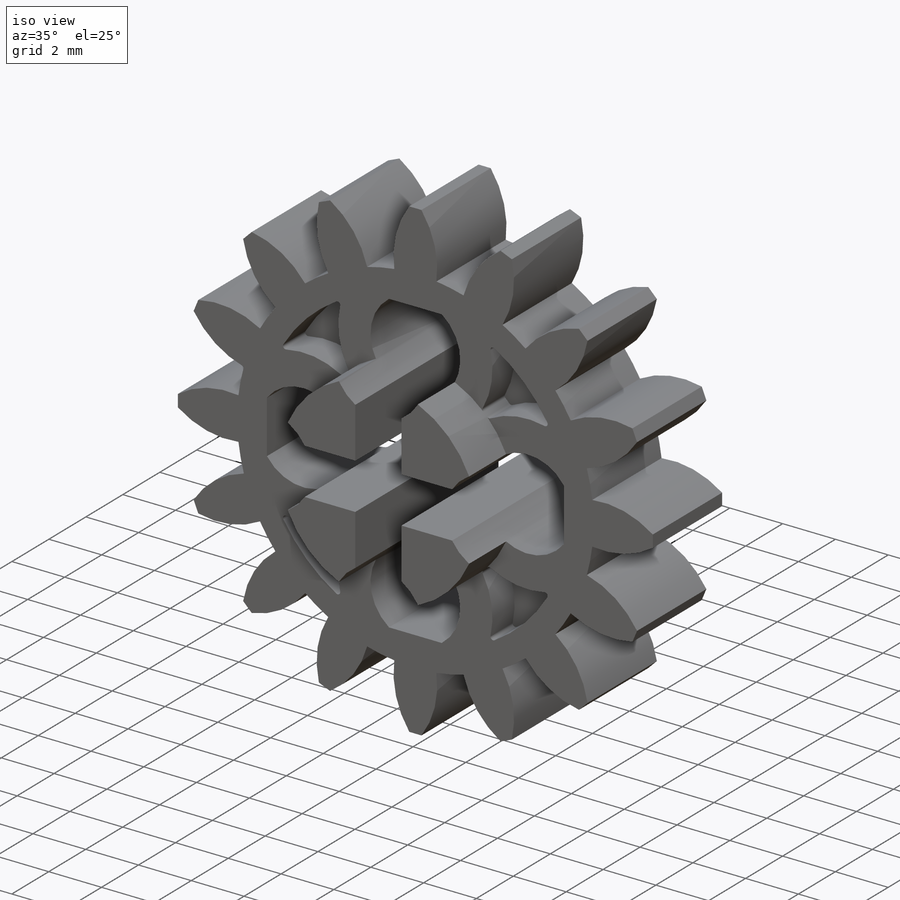
[diagram: iso view]
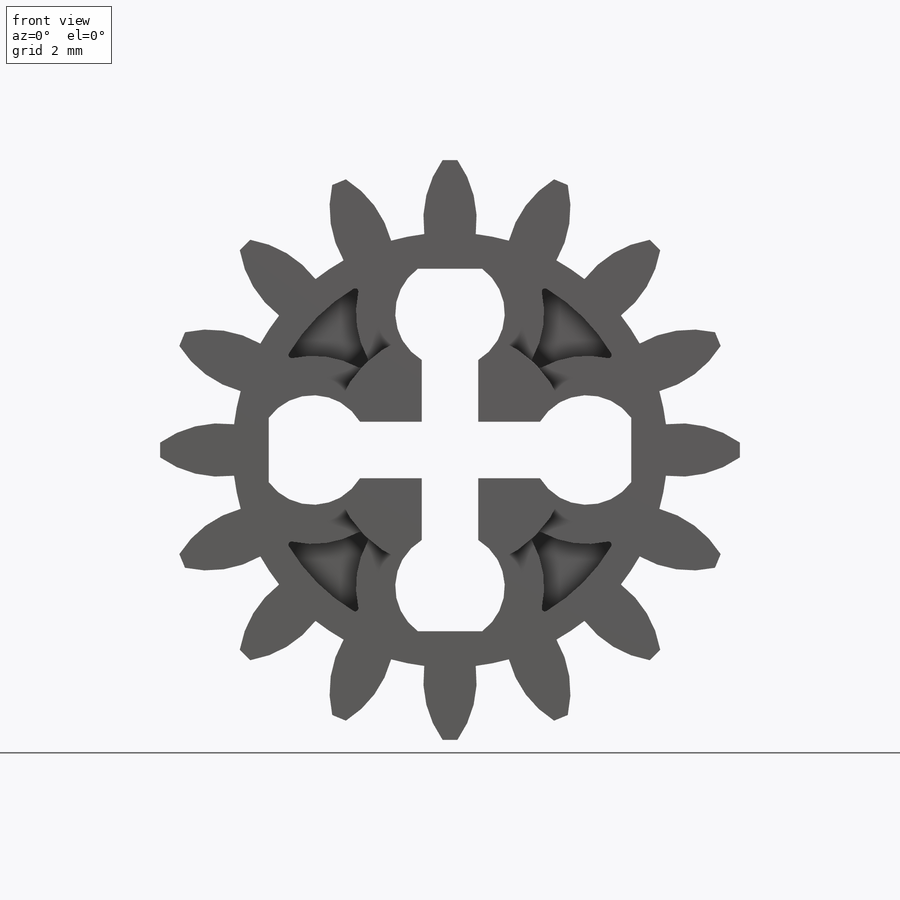
[diagram: front view]
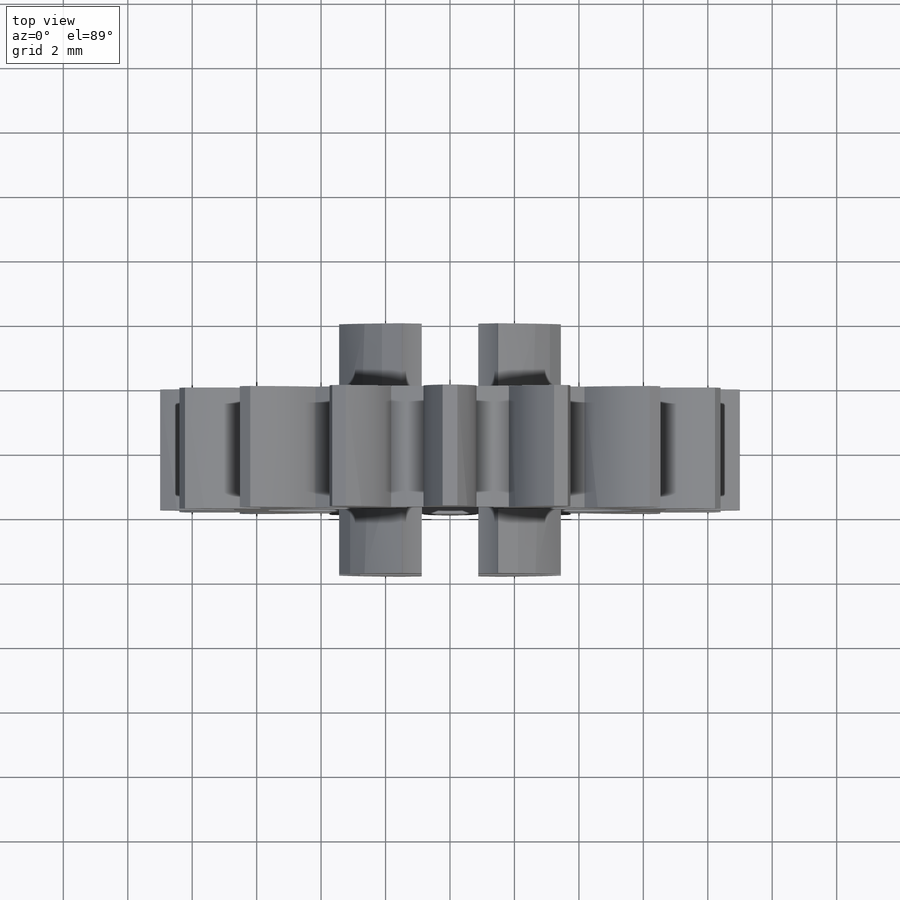
[diagram: top view]
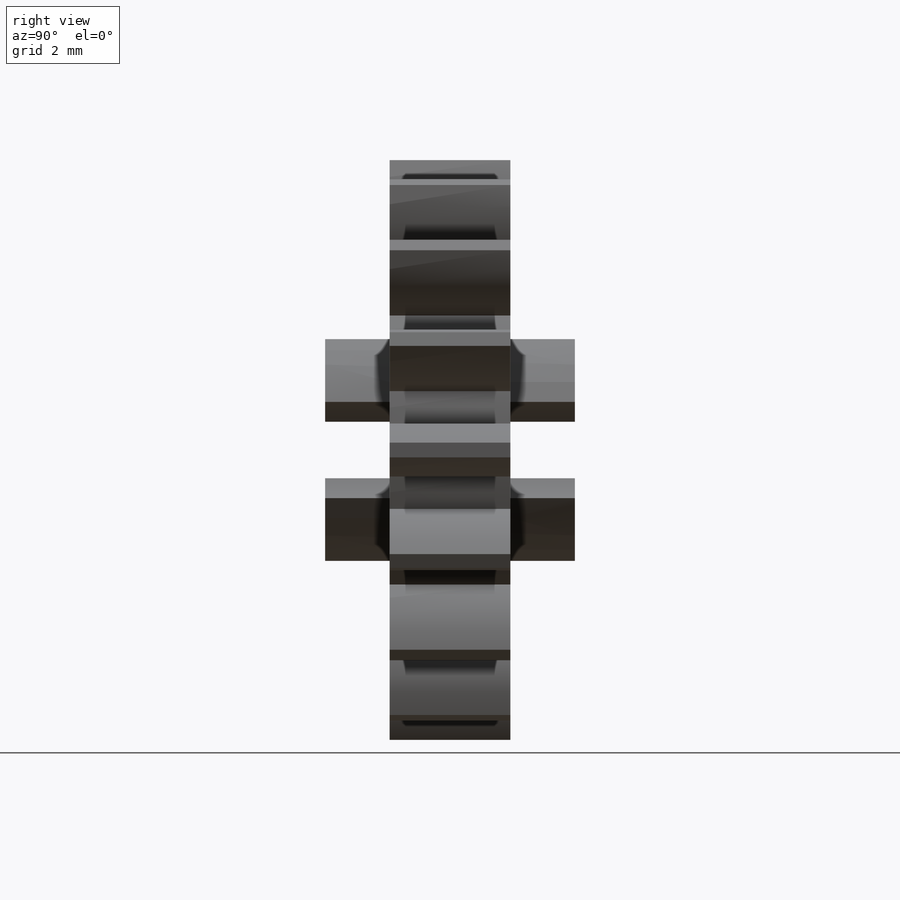
[diagram: right view]
SOLIDWORKS PART (.sldprt)
format: sldprt  version: not decoded by parser v0  size: 548,352 bytes
history: native  units: mm
features: plane x7, sketch x4, cut_extrude x3, material x1, move_body x1, extrude x1, fillet x1, pattern_circular x1, mirror x1 + 4 further entries (+14 scaffold rows collapsed; 3 parser-record rows omitted)
feature tree (41):
  scaffold x14  (default folders/planes/origin — collapsed)
  material  "PVC hart"
  plane  "Ebene vorne"
  plane  "Ebene oben"
  plane  "Ebene rechts"
  plane  "Plane1-Zahnrad 1.0M 16T"
  plane  "Plane2-Zahnrad 1.0M 16T"
  plane  "Plane3-Zahnrad 1.0M 16T"
  plane  "FarPln-Zahnrad 1.0M 16T"
  "Achse1-Zahnrad 1.0M 16T"
  "Zahnrad 1.0M 16T"
  parser-record x3  (decoder bookkeeping rows leaked as tree rows — omitted from the tree; the rows remain in map.json)
  move_body  "Körper-Verschieben/Kopieren4"
  "Deckungsgleich8"
  "Deckungsgleich10"
  sketch  "Skizze2"  dims[D1=3.75mm D2=30.0mm]
  cut_extrude  "Schnitt-Linear austragen1"  [1 undecoded]
  sketch  "Skizze3"  dims[D1=7.5mm]
  extrude  "Aufsatz-Linear austragen1"  Depth=7.75mm
  sketch  "Skizze4"  dims[c1.D1=3.4mm c1.D2=8.5mm c1.D3=1.6mm c1.D4=11.5mm c2.D3=11.25mm c2.D4=1.75mm]
  cut_extrude  "Schnitt-Linear austragen2"  [1 undecoded]
  sketch  "Skizze5"  dims[c1.D1=~2.399819mm c1.D2=~6.180912mm c2.D1=1.22mm c2.D2=0.92mm]
  cut_extrude  "Schnitt-Linear austragen3"  Depth=1.2mm
  fillet  "Verrundung1"  Radius=0.1mm
  pattern_circular  "Kreismuster2"  Count=4 Angle=360deg
  mirror  "Spiegeln1"
decode coverage: 8 of 12 modeling features carry decoded parameters; 4 rows unclassified (native names shown)
note: ~ marks probable driven/reference dimensions
note: 2 parameter values undecoded
note: suppression state not decoded; provenance and decode notes live in map.json
